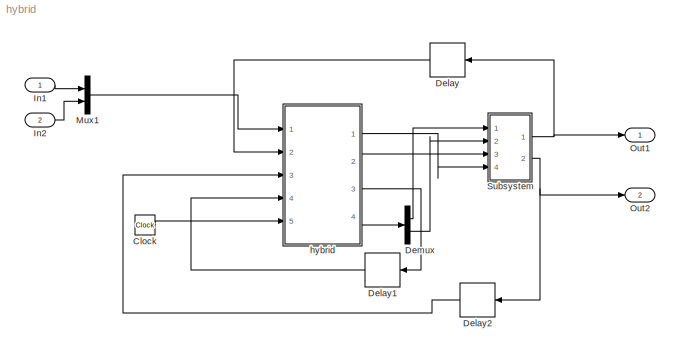
MODEL hybrid
KIND model
BLOCK [Clock] Clock
  SID = 131
BLOCK [Delay] Delay
  DelayLength = 1
  InitialCondition = 0
  InputPortMap = u0
  Ports = [1, 1]
  SID = 132
BLOCK [Delay] Delay1
  DelayLength = 1
  InitialCondition = 0
  InputPortMap = u0
  Ports = [1, 1]
  SID = 133
BLOCK [Delay] Delay2
  DelayLength = 1
  InitialCondition = 0
  InputPortMap = u0
  Ports = [1, 1]
  SID = 135
BLOCK [Demux] Demux
  DisplayOption = bar
  Outputs = 2
  Ports = [1, 2]
  SID = 142
BLOCK [Inport] In1
  IconDisplay = Port number
  SID = 151
BLOCK [Inport] In2
  IconDisplay = Port number
  Port = 2
  SID = 152
BLOCK [Mux] Mux1
  DisplayOption = bar
  Inputs = 2
  Ports = [2, 1]
  SID = 150
BLOCK [Outport] Out1
  IconDisplay = Port number
  SID = 145
BLOCK [Outport] Out2
  IconDisplay = Port number
  Port = 2
  SID = 146
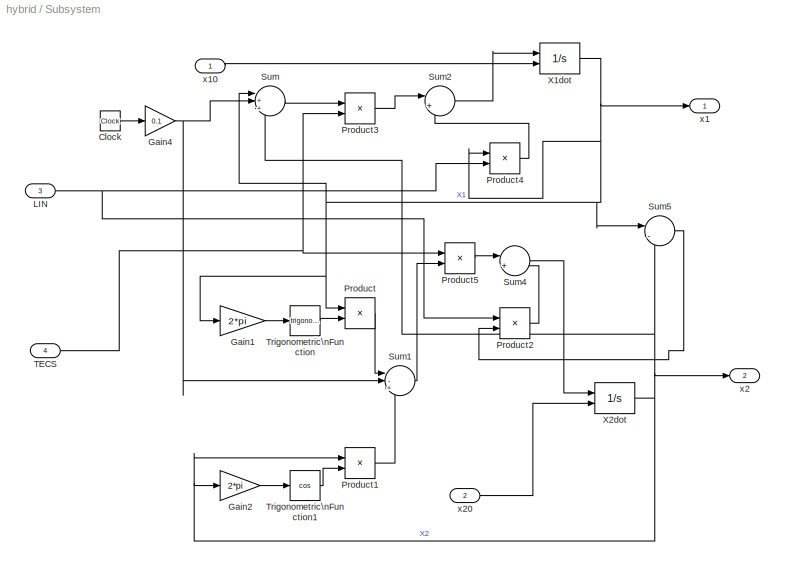
BLOCK [SubSystem] Subsystem
  Ports = [4, 2]
  RequestExecContextInheritance = off
  SID = 103
BLOCK [Clock] Subsystem/Clock
  SID = 109
BLOCK [Gain] Subsystem/Gain1
  Gain = 2*pi
  OutDataTypeStr = Inherit: Inherit via internal rule
  ParamDataTypeStr = Inherit: Inherit via internal rule
  SID = 77
  SaturateOnIntegerOverflow = off
BLOCK [Gain] Subsystem/Gain2
  Gain = 2*pi
  OutDataTypeStr = Inherit: Inherit via internal rule
  ParamDataTypeStr = Inherit: Inherit via internal rule
  SID = 78
  SaturateOnIntegerOverflow = off
BLOCK [Gain] Subsystem/Gain4
  Gain = 0.1
  OutDataTypeStr = Inherit: Inherit via internal rule
  ParamDataTypeStr = Inherit: Inherit via internal rule
  SID = 110
  SaturateOnIntegerOverflow = off
BLOCK [Inport] Subsystem/LIN
  IconDisplay = Port number
  Port = 3
  SID = 122
BLOCK [Product] Subsystem/Product
  InputSameDT = off
  OutDataTypeStr = Inherit: Inherit via internal rule
  Ports = [2, 1]
  RndMeth = Floor
  SID = 81
  SaturateOnIntegerOverflow = off
BLOCK [Product] Subsystem/Product1
  InputSameDT = off
  OutDataTypeStr = Inherit: Inherit via internal rule
  Ports = [2, 1]
  RndMeth = Floor
  SID = 82
  SaturateOnIntegerOverflow = off
BLOCK [Product] Subsystem/Product2
  InputSameDT = off
  OutDataTypeStr = Inherit: Inherit via internal rule
  Ports = [2, 1]
  RndMeth = Floor
  SID = 124
  SaturateOnIntegerOverflow = off
BLOCK [Product] Subsystem/Product3
  InputSameDT = off
  OutDataTypeStr = Inherit: Inherit via internal rule
  Ports = [2, 1]
  RndMeth = Floor
  SID = 126
  SaturateOnIntegerOverflow = off
BLOCK [Product] Subsystem/Product4
  InputSameDT = off
  OutDataTypeStr = Inherit: Inherit via internal rule
  Ports = [2, 1]
  RndMeth = Floor
  SID = 123
  SaturateOnIntegerOverflow = off
BLOCK [Product] Subsystem/Product5
  InputSameDT = off
  OutDataTypeStr = Inherit: Inherit via internal rule
  Ports = [2, 1]
  RndMeth = Floor
  SID = 125
  SaturateOnIntegerOverflow = off
BLOCK [Sum] Subsystem/Sum
  IconShape = round
  InputSameDT = off
  Inputs = |++-
  OutDataTypeStr = Inherit: Inherit via internal rule
  Ports = [3, 1]
  SID = 87
  SaturateOnIntegerOverflow = off
BLOCK [Sum] Subsystem/Sum1
  IconShape = round
  InputSameDT = off
  Inputs = |-++
  OutDataTypeStr = Inherit: Inherit via internal rule
  Ports = [3, 1]
  SID = 88
  SaturateOnIntegerOverflow = off
BLOCK [Sum] Subsystem/Sum2
  IconShape = round
  InputSameDT = off
  Inputs = |++
  OutDataTypeStr = Inherit: Inherit via internal rule
  Ports = [2, 1]
  SID = 112
  SaturateOnIntegerOverflow = off
BLOCK [Sum] Subsystem/Sum4
  IconShape = round
  InputSameDT = off
  Inputs = |++
  OutDataTypeStr = Inherit: Inherit via internal rule
  Ports = [2, 1]
  SID = 116
  SaturateOnIntegerOverflow = off
BLOCK [Sum] Subsystem/Sum5
  IconShape = round
  InputSameDT = off
  Inputs = |-+
  OutDataTypeStr = Inherit: Inherit via internal rule
  Ports = [2, 1]
  SID = 117
  SaturateOnIntegerOverflow = off
BLOCK [Inport] Subsystem/TECS
  IconDisplay = Port number
  Port = 4
  SID = 119
BLOCK [Trigonometry] Subsystem/Trigonometric\nFunction
  Ports = [1, 1]
  SID = 95
BLOCK [Trigonometry] Subsystem/Trigonometric\nFunction1
  Operator = cos
  Ports = [1, 1]
  SID = 96
BLOCK [Integrator] Subsystem/X1dot
  InitialCondition = 0.5
  InitialConditionSource = external
  Ports = [2, 1]
  SID = 97
BLOCK [Integrator] Subsystem/X2dot
  InitialCondition = 0.5
  InitialConditionSource = external
  Ports = [2, 1]
  SID = 98
BLOCK [Outport] Subsystem/x1
  IconDisplay = Port number
  SID = 108
BLOCK [Inport] Subsystem/x10
  IconDisplay = Port number
  SID = 106
BLOCK [Outport] Subsystem/x2
  IconDisplay = Port number
  Port = 2
  SID = 107
BLOCK [Inport] Subsystem/x20
  IconDisplay = Port number
  Port = 2
  SID = 127
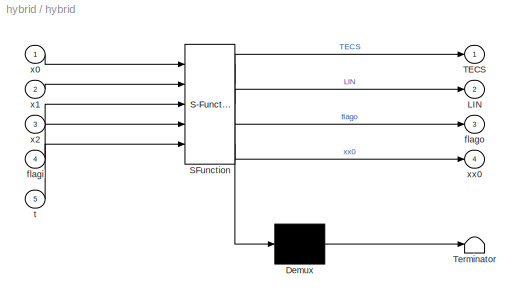
BLOCK [SubSystem] hybrid
  ErrorFcn = Stateflow.Translate.translate
  PermitHierarchicalResolution = ExplicitOnly
  Ports = [5, 4]
  RequestExecContextInheritance = off
  SFBlockType = MATLAB Function
  SID = 2
  TreatAsAtomicUnit = on
BLOCK [Demux] hybrid/ Demux 
  Outputs = 1
  Ports = [1, 1]
  SID = 2::35
BLOCK [S-Function] hybrid/ SFunction 
  FunctionName = sf_sfun
  PortCounts = [5 5]
  Ports = [5, 5]
  SID = 2::34
  Tag = Stateflow S-Function hybrid 2
BLOCK [Terminator] hybrid/ Terminator 
  SID = 2::36
BLOCK [Outport] hybrid/LIN
  IconDisplay = Port number
  Port = 2
  SID = 2::27
BLOCK [Outport] hybrid/TECS
  IconDisplay = Port number
  SID = 2::5
BLOCK [Inport] hybrid/flagi
  IconDisplay = Port number
  Port = 4
  SID = 2::26
BLOCK [Outport] hybrid/flago
  IconDisplay = Port number
  Port = 3
  SID = 2::21
BLOCK [Inport] hybrid/t
  IconDisplay = Port number
  Port = 5
  SID = 2::29
BLOCK [Inport] hybrid/x0
  IconDisplay = Port number
  SID = 2::28
BLOCK [Inport] hybrid/x1
  IconDisplay = Port number
  Port = 2
  SID = 2::19
BLOCK [Inport] hybrid/x2
  IconDisplay = Port number
  Port = 3
  SID = 2::37
BLOCK [Outport] hybrid/xx0
  IconDisplay = Port number
  Port = 4
  SID = 2::30
LINE Clock:1 -> hybrid:5
LINE Delay1:1 -> hybrid:4
LINE Delay2:1 -> hybrid:3
LINE Delay:1 -> hybrid:2
LINE Demux:1 -> Subsystem:1
LINE Demux:2 -> Subsystem:2
LINE In1:1 -> Mux1:1
LINE In2:1 -> Mux1:2
LINE Mux1:1 -> hybrid:1
LINE Subsystem/Clock:1 -> Subsystem/Gain4:1
LINE Subsystem/Gain1:1 -> Subsystem/Trigonometric\nFunction:1
LINE Subsystem/Gain2:1 -> Subsystem/Trigonometric\nFunction1:1
NET Subsystem/Gain4:1 -> Subsystem/Sum1:2, Subsystem/Sum:2
NET Subsystem/LIN:1 -> Subsystem/Product2:1, Subsystem/Product4:2
LINE Subsystem/Product1:1 -> Subsystem/Sum1:3
LINE Subsystem/Product2:1 -> Subsystem/Sum4:2
LINE Subsystem/Product3:1 -> Subsystem/Sum2:1
LINE Subsystem/Product4:1 -> Subsystem/Sum2:2
LINE Subsystem/Product5:1 -> Subsystem/Sum4:1
LINE Subsystem/Product:1 -> Subsystem/Sum1:1
LINE Subsystem/Sum1:1 -> Subsystem/Product5:2
LINE Subsystem/Sum2:1 -> Subsystem/X1dot:1
LINE Subsystem/Sum4:1 -> Subsystem/X2dot:1
LINE Subsystem/Sum5:1 -> Subsystem/Product2:2
LINE Subsystem/Sum:1 -> Subsystem/Product3:1
NET Subsystem/TECS:1 -> Subsystem/Product3:2, Subsystem/Product5:1
LINE Subsystem/Trigonometric\nFunction1:1 -> Subsystem/Product1:2
LINE Subsystem/Trigonometric\nFunction:1 -> Subsystem/Product:2
NET Subsystem/X1dot:1 -> Subsystem/Gain1:1, Subsystem/Product4:1, Subsystem/Product:1, Subsystem/Sum5:1, Subsystem/Sum:1, Subsystem/x1:1
NET Subsystem/X2dot:1 -> Subsystem/Gain2:1, Subsystem/Product1:1, Subsystem/Sum5:2, Subsystem/Sum:3, Subsystem/x2:1
LINE Subsystem/x10:1 -> Subsystem/X1dot:2
LINE Subsystem/x20:1 -> Subsystem/X2dot:2
NET Subsystem:1 -> Delay:1, Out1:1
NET Subsystem:2 -> Delay2:1, Out2:1
LINE hybrid/ Demux :1 -> hybrid/ Terminator :1
LINE hybrid/ SFunction :1 -> hybrid/ Demux :1
LINE hybrid/ SFunction :2 -> hybrid/TECS:1
LINE hybrid/ SFunction :3 -> hybrid/LIN:1
LINE hybrid/ SFunction :4 -> hybrid/flago:1
LINE hybrid/ SFunction :5 -> hybrid/xx0:1
LINE hybrid/flagi:1 -> hybrid/ SFunction :4
LINE hybrid/t:1 -> hybrid/ SFunction :5
LINE hybrid/x0:1 -> hybrid/ SFunction :1
LINE hybrid/x1:1 -> hybrid/ SFunction :2
LINE hybrid/x2:1 -> hybrid/ SFunction :3
LINE hybrid:1 -> Subsystem:4
LINE hybrid:2 -> Subsystem:3
LINE hybrid:3 -> Delay1:1
LINE hybrid:4 -> Demux:1
note: NET lines group one-source signal fan-out (src -> all destinations, sorted); 1:1 wires keep LINE
CHART hybrid states=1 transitions=1
  STATE_LABEL 'eML_blk_kernel()'
